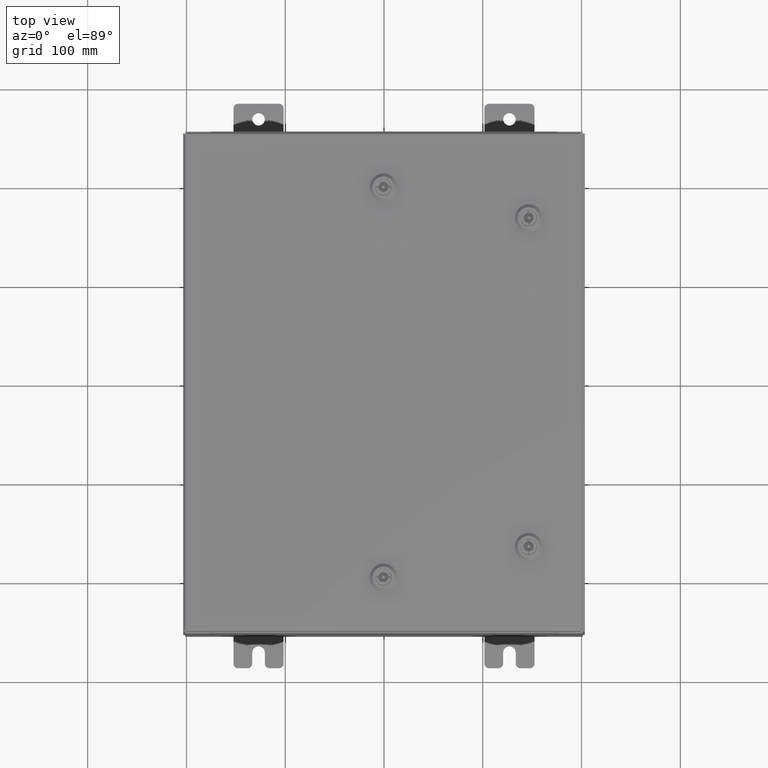
[diagram: clean part render]
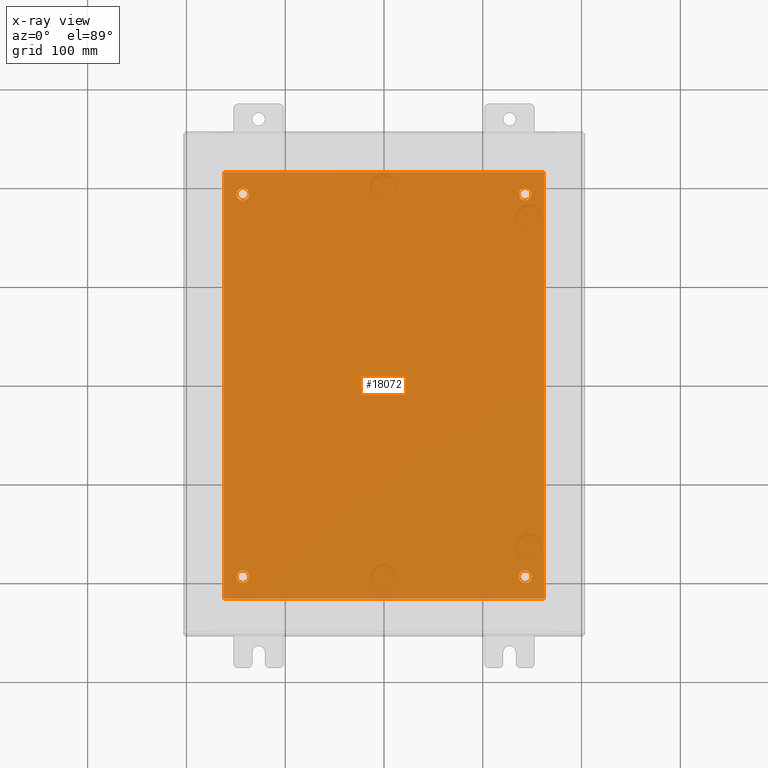
[diagram: x-ray — body ghosted, one internal face saturated and labeled with its STEP entity id]
A machine part, top view, then the same camera in x-ray: the body is ghosted and one INTERNAL B-rep face — a face not visible from any outside direction — is saturated and labeled: STEP entity #18072.
In plain terms, the highlighted planar face has unit normal (0, 0, -1).
Its self-contained STEP definition (entity closure, byte-faithful):
#182 = DIRECTION ( 'NONE',  ( -0.0000000000000000000, -0.0000000000000000000, 1.000000000000000000 ) ) ;
#1675 = EDGE_LOOP ( 'NONE', ( #62892, #8746 ) ) ;
#1815 = DIRECTION ( 'NONE',  ( -0.0000000000000000000, -0.0000000000000000000, 1.000000000000000000 ) ) ;
#2129 = VERTEX_POINT ( 'NONE', #42544 ) ;
#2853 = CARTESIAN_POINT ( 'NONE',  ( 6.383000000000002700, -8.499999999999998200, -0.1039999999999998100 ) ) ;
#2903 = ORIENTED_EDGE ( 'NONE', *, *, #58856, .F. ) ;
#3947 = CIRCLE ( 'NONE', #62806, 0.2499999999999987000 ) ;
#4199 = VERTEX_POINT ( 'NONE', #59208 ) ;
#4657 = EDGE_CURVE ( 'NONE', #34776, #61314, #54342, .T. ) ;
#4687 = LINE ( 'NONE', #2853, #14541 ) ;
#5102 = LINE ( 'NONE', #59748, #29464 ) ;
#5587 = CARTESIAN_POINT ( 'NONE',  ( 0.0000000000000000000, 0.0000000000000000000, -0.1039999999999999800 ) ) ;
#5968 = CIRCLE ( 'NONE', #22371, 0.2499999999999998100 ) ;
#6773 = EDGE_LOOP ( 'NONE', ( #33319, #54910 ) ) ;
#6777 = CARTESIAN_POINT ( 'NONE',  ( 5.874999999999999100, 7.625000000000002700, -0.1039999999999999800 ) ) ;
#7438 = EDGE_CURVE ( 'NONE', #11305, #58987, #13006, .T. ) ;
#7446 = ORIENTED_EDGE ( 'NONE', *, *, #59783, .T. ) ;
#7761 = DIRECTION ( 'NONE',  ( 0.0000000000000000000, 1.000000000000000000, 0.0000000000000000000 ) ) ;
#8026 = AXIS2_PLACEMENT_3D ( 'NONE', #5587, #59239, #30054 ) ;
#8350 = FACE_BOUND ( 'NONE', #6773, .T. ) ;
#8669 = CARTESIAN_POINT ( 'NONE',  ( 5.625000000000004400, -7.625000000000000900, -0.1039999999999999800 ) ) ;
#8746 = ORIENTED_EDGE ( 'NONE', *, *, #58370, .T. ) ;
#10467 = AXIS2_PLACEMENT_3D ( 'NONE', #29319, #182, #34225 ) ;
#11305 = VERTEX_POINT ( 'NONE', #56428 ) ;
#11925 = DIRECTION ( 'NONE',  ( -0.0000000000000000000, -0.0000000000000000000, 1.000000000000000000 ) ) ;
#12333 = LINE ( 'NONE', #35324, #62639 ) ;
#13006 = LINE ( 'NONE', #15238, #35879 ) ;
#13545 = DIRECTION ( 'NONE',  ( -1.000000000000000000, 0.0000000000000000000, 0.0000000000000000000 ) ) ;
#13673 = ORIENTED_EDGE ( 'NONE', *, *, #4657, .T. ) ;
#13957 = CARTESIAN_POINT ( 'NONE',  ( 5.375000000000001800, 7.625000000000002700, -0.1039999999999999800 ) ) ;
#14161 = EDGE_CURVE ( 'NONE', #47362, #51837, #59562, .T. ) ;
#14541 = VECTOR ( 'NONE', #7761, 39.37007874015748100 ) ;
#15238 = CARTESIAN_POINT ( 'NONE',  ( -6.382999999999998200, 8.500000000000000000, -0.1039999999999998100 ) ) ;
#16163 = CARTESIAN_POINT ( 'NONE',  ( -5.875000000000000000, 7.625000000000001800, -0.1039999999999999800 ) ) ;
#17319 = CARTESIAN_POINT ( 'NONE',  ( 5.625000000000004400, -7.625000000000000900, -0.1039999999999999800 ) ) ;
#17986 = ORIENTED_EDGE ( 'NONE', *, *, #27391, .F. ) ;
#18072 = ADVANCED_FACE ( 'NONE', ( #21276, #60185, #8350, #58645, #45675 ), #54347, .T. ) ;
#19274 = DIRECTION ( 'NONE',  ( -0.0000000000000000000, -0.0000000000000000000, 1.000000000000000000 ) ) ;
#20809 = DIRECTION ( 'NONE',  ( 1.000000000000000000, 0.0000000000000000000, 0.0000000000000000000 ) ) ;
#21276 = FACE_BOUND ( 'NONE', #30005, .T. ) ;
#22213 = DIRECTION ( 'NONE',  ( -1.000000000000000000, 0.0000000000000000000, 0.0000000000000000000 ) ) ;
#22371 = AXIS2_PLACEMENT_3D ( 'NONE', #48478, #19274, #53376 ) ;
#23168 = CARTESIAN_POINT ( 'NONE',  ( -5.625000000000000000, -7.625000000000001800, -0.1039999999999999800 ) ) ;
#23784 = CARTESIAN_POINT ( 'NONE',  ( 5.625000000000000000, 7.625000000000002700, -0.1039999999999999800 ) ) ;
#25285 = AXIS2_PLACEMENT_3D ( 'NONE', #30960, #1815, #35901 ) ;
#26248 = CARTESIAN_POINT ( 'NONE',  ( -5.375000000000000900, -7.625000000000001800, -0.1039999999999999800 ) ) ;
#27391 = EDGE_CURVE ( 'NONE', #58987, #2129, #12333, .T. ) ;
#27494 = VERTEX_POINT ( 'NONE', #26248 ) ;
#27746 = CARTESIAN_POINT ( 'NONE',  ( -5.875000000000000000, -7.625000000000001800, -0.1039999999999999800 ) ) ;
#28092 = DIRECTION ( 'NONE',  ( -1.000000000000000000, 0.0000000000000000000, 0.0000000000000000000 ) ) ;
#28701 = DIRECTION ( 'NONE',  ( -1.000000000000000000, 0.0000000000000000000, 0.0000000000000000000 ) ) ;
#29319 = CARTESIAN_POINT ( 'NONE',  ( -5.625000000000000000, 7.625000000000001800, -0.1039999999999999800 ) ) ;
#29464 = VECTOR ( 'NONE', #30547, 39.37007874015748100 ) ;
#29974 = DIRECTION ( 'NONE',  ( 0.0000000000000000000, -1.000000000000000000, 0.0000000000000000000 ) ) ;
#30005 = EDGE_LOOP ( 'NONE', ( #7446, #35149 ) ) ;
#30054 = DIRECTION ( 'NONE',  ( -1.000000000000000000, 0.0000000000000000000, -0.0000000000000000000 ) ) ;
#30399 = EDGE_CURVE ( 'NONE', #42237, #4199, #57828, .T. ) ;
#30547 = DIRECTION ( 'NONE',  ( -1.000000000000000000, -0.0000000000000000000, -0.0000000000000000000 ) ) ;
#30960 = CARTESIAN_POINT ( 'NONE',  ( -5.625000000000000000, -7.625000000000001800, -0.1039999999999999800 ) ) ;
#32772 = CARTESIAN_POINT ( 'NONE',  ( 5.875000000000003600, -7.625000000000000900, -0.1039999999999999800 ) ) ;
#33287 = EDGE_CURVE ( 'NONE', #36077, #27494, #37862, .T. ) ;
#33319 = ORIENTED_EDGE ( 'NONE', *, *, #42407, .T. ) ;
#33582 = CIRCLE ( 'NONE', #25285, 0.2499999999999998100 ) ;
#34225 = DIRECTION ( 'NONE',  ( -1.000000000000000000, 0.0000000000000000000, 0.0000000000000000000 ) ) ;
#34776 = VERTEX_POINT ( 'NONE', #47122 ) ;
#35149 = ORIENTED_EDGE ( 'NONE', *, *, #33287, .T. ) ;
#35324 = CARTESIAN_POINT ( 'NONE',  ( -6.499999999999998200, -8.499999999999998200, -0.1039999999999999800 ) ) ;
#35879 = VECTOR ( 'NONE', #29974, 39.37007874015748100 ) ;
#35901 = DIRECTION ( 'NONE',  ( -1.000000000000000000, 0.0000000000000000000, 0.0000000000000000000 ) ) ;
#36077 = VERTEX_POINT ( 'NONE', #27746 ) ;
#37862 = CIRCLE ( 'NONE', #62451, 0.2499999999999998100 ) ;
#38281 = AXIS2_PLACEMENT_3D ( 'NONE', #17319, #51397, #22213 ) ;
#38465 = VERTEX_POINT ( 'NONE', #61380 ) ;
#40969 = AXIS2_PLACEMENT_3D ( 'NONE', #41095, #11925, #45984 ) ;
#41095 = CARTESIAN_POINT ( 'NONE',  ( 5.625000000000000000, 7.625000000000002700, -0.1039999999999999800 ) ) ;
#42237 = VERTEX_POINT ( 'NONE', #32772 ) ;
#42407 = EDGE_CURVE ( 'NONE', #51837, #47362, #46419, .T. ) ;
#42544 = CARTESIAN_POINT ( 'NONE',  ( 6.383000000000000900, -8.499999999999998200, -0.1039999999999999800 ) ) ;
#42727 = DIRECTION ( 'NONE',  ( -0.0000000000000000000, -0.0000000000000000000, 1.000000000000000000 ) ) ;
#43412 = ORIENTED_EDGE ( 'NONE', *, *, #47652, .F. ) ;
#44697 = ORIENTED_EDGE ( 'NONE', *, *, #7438, .F. ) ;
#45675 = FACE_OUTER_BOUND ( 'NONE', #58769, .T. ) ;
#45984 = DIRECTION ( 'NONE',  ( -1.000000000000000000, 0.0000000000000000000, 0.0000000000000000000 ) ) ;
#46044 = EDGE_CURVE ( 'NONE', #61314, #34776, #5968, .T. ) ;
#46419 = CIRCLE ( 'NONE', #52894, 0.2499999999999987000 ) ;
#47122 = CARTESIAN_POINT ( 'NONE',  ( -5.375000000000000900, 7.625000000000001800, -0.1039999999999999800 ) ) ;
#47362 = VERTEX_POINT ( 'NONE', #13957 ) ;
#47652 = EDGE_CURVE ( 'NONE', #38465, #11305, #5102, .T. ) ;
#48478 = CARTESIAN_POINT ( 'NONE',  ( -5.625000000000000000, 7.625000000000001800, -0.1039999999999999800 ) ) ;
#51397 = DIRECTION ( 'NONE',  ( -0.0000000000000000000, -0.0000000000000000000, 1.000000000000000000 ) ) ;
#51837 = VERTEX_POINT ( 'NONE', #6777 ) ;
#52894 = AXIS2_PLACEMENT_3D ( 'NONE', #23784, #57890, #28701 ) ;
#53376 = DIRECTION ( 'NONE',  ( -1.000000000000000000, 0.0000000000000000000, 0.0000000000000000000 ) ) ;
#54342 = CIRCLE ( 'NONE', #10467, 0.2499999999999998100 ) ;
#54347 = PLANE ( 'NONE',  #8026 ) ;
#54910 = ORIENTED_EDGE ( 'NONE', *, *, #14161, .T. ) ;
#55043 = EDGE_LOOP ( 'NONE', ( #13673, #58713 ) ) ;
#56428 = CARTESIAN_POINT ( 'NONE',  ( -6.382999999999998200, 8.500000000000000000, -0.1039999999999998100 ) ) ;
#57273 = DIRECTION ( 'NONE',  ( -0.0000000000000000000, -0.0000000000000000000, 1.000000000000000000 ) ) ;
#57828 = CIRCLE ( 'NONE', #38281, 0.2499999999999987000 ) ;
#57890 = DIRECTION ( 'NONE',  ( -0.0000000000000000000, -0.0000000000000000000, 1.000000000000000000 ) ) ;
#58370 = EDGE_CURVE ( 'NONE', #4199, #42237, #3947, .T. ) ;
#58645 = FACE_BOUND ( 'NONE', #55043, .T. ) ;
#58713 = ORIENTED_EDGE ( 'NONE', *, *, #46044, .T. ) ;
#58769 = EDGE_LOOP ( 'NONE', ( #17986, #44697, #43412, #2903 ) ) ;
#58856 = EDGE_CURVE ( 'NONE', #2129, #38465, #4687, .T. ) ;
#58987 = VERTEX_POINT ( 'NONE', #61650 ) ;
#59208 = CARTESIAN_POINT ( 'NONE',  ( 5.375000000000006200, -7.625000000000000900, -0.1039999999999999800 ) ) ;
#59239 = DIRECTION ( 'NONE',  ( 0.0000000000000000000, 0.0000000000000000000, -1.000000000000000000 ) ) ;
#59562 = CIRCLE ( 'NONE', #40969, 0.2499999999999987000 ) ;
#59748 = CARTESIAN_POINT ( 'NONE',  ( -6.499999999999998200, 8.500000000000000000, -0.1039999999999999800 ) ) ;
#59783 = EDGE_CURVE ( 'NONE', #27494, #36077, #33582, .T. ) ;
#60185 = FACE_BOUND ( 'NONE', #1675, .T. ) ;
#61314 = VERTEX_POINT ( 'NONE', #16163 ) ;
#61380 = CARTESIAN_POINT ( 'NONE',  ( 6.383000000000000900, 8.500000000000000000, -0.1039999999999999800 ) ) ;
#61650 = CARTESIAN_POINT ( 'NONE',  ( -6.382999999999998200, -8.499999999999998200, -0.1039999999999998100 ) ) ;
#62451 = AXIS2_PLACEMENT_3D ( 'NONE', #23168, #57273, #28092 ) ;
#62639 = VECTOR ( 'NONE', #20809, 39.37007874015748100 ) ;
#62806 = AXIS2_PLACEMENT_3D ( 'NONE', #8669, #42727, #13545 ) ;
#62892 = ORIENTED_EDGE ( 'NONE', *, *, #30399, .T. ) ;